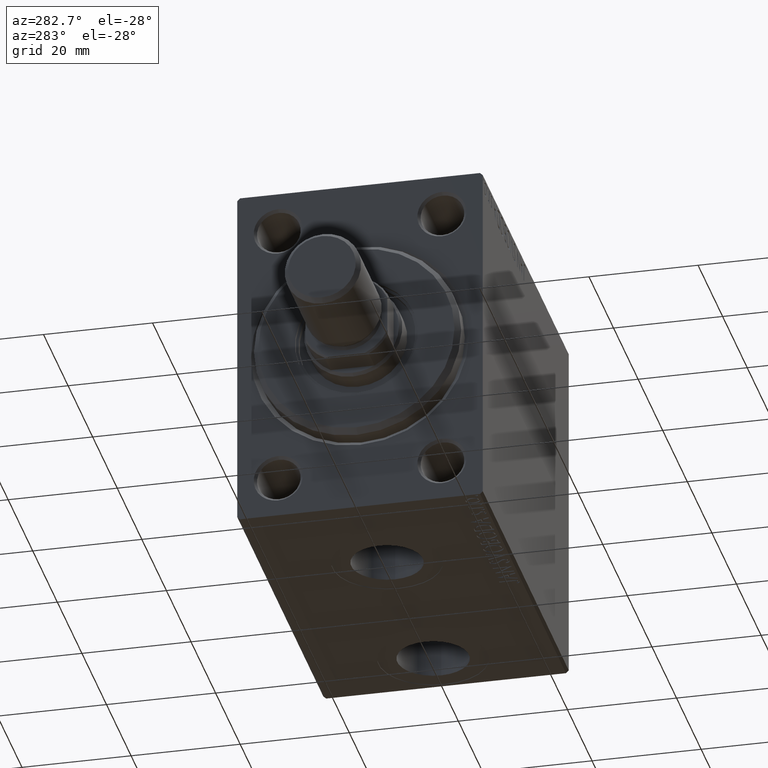
[diagram: clean part render]
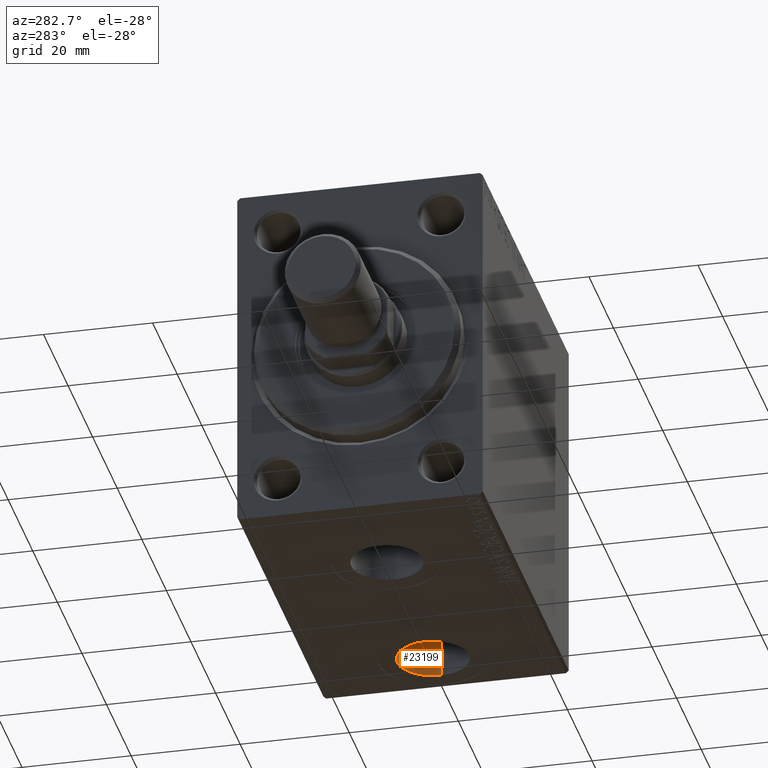
[diagram: same view with one face highlighted and labeled with its STEP entity id]
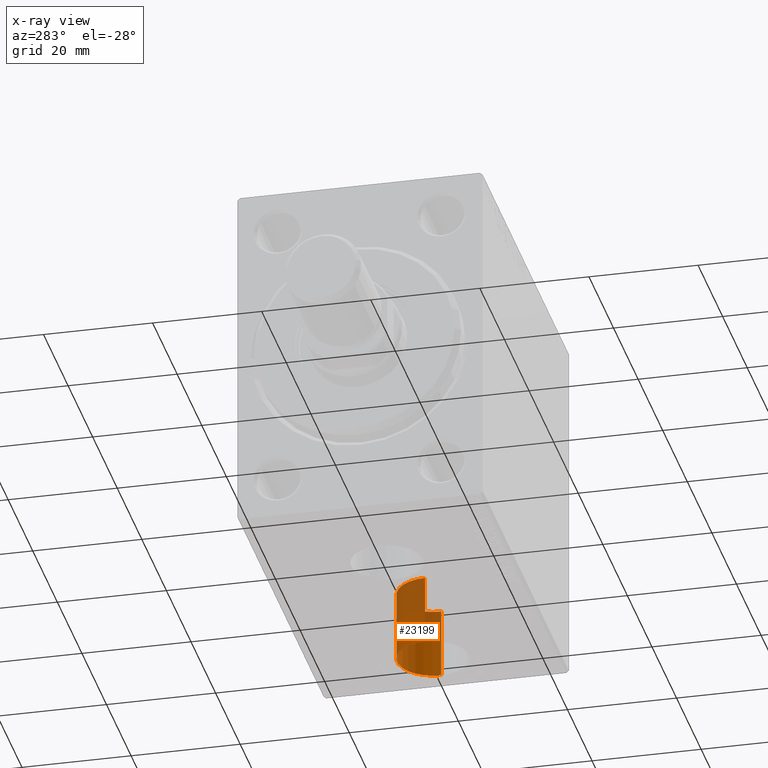
[diagram: x-ray of the same camera — body ghosted, the highlighted face saturated]
A machine part, auxiliary view. The second image highlights one B-rep face of the part: STEP entity #23199.
The next image is the same camera in x-ray: the body ghosted, the highlighted face saturated — about 40% of this face is hidden behind the body in this view.
In plain terms, the highlighted cylindrical surface (partial cylindrical patch) has radius 6.58 mm, axis along (-0, -0, -1).
Its self-contained STEP definition (entity closure, byte-faithful):
#237 = CYLINDRICAL_SURFACE ( 'NONE', #45029, 6.580000000000002736 ) ;
#2285 = VECTOR ( 'NONE', #20645, 1000.000000000000000 ) ;
#2688 = ORIENTED_EDGE ( 'NONE', *, *, #44700, .F. ) ;
#3340 = LINE ( 'NONE', #35212, #31662 ) ;
#6346 = ORIENTED_EDGE ( 'NONE', *, *, #23997, .T. ) ;
#7587 = DIRECTION ( 'NONE',  ( 0.000000000000000000, 0.000000000000000000, -1.000000000000000000 ) ) ;
#9614 = VERTEX_POINT ( 'NONE', #31049 ) ;
#9959 = DIRECTION ( 'NONE',  ( 0.000000000000000000, 0.000000000000000000, -1.000000000000000000 ) ) ;
#10400 = LINE ( 'NONE', #20869, #2285 ) ;
#10526 = EDGE_CURVE ( 'NONE', #9614, #26932, #24234, .T. ) ;
#14478 = CIRCLE ( 'NONE', #18150, 6.580000000000002736 ) ;
#14917 = CARTESIAN_POINT ( 'NONE',  ( 66.07999999999999829, -5.850147353426743435E-15, -19.50000000000000355 ) ) ;
#15347 = EDGE_LOOP ( 'NONE', ( #2688, #27203, #6346, #37095 ) ) ;
#18150 = AXIS2_PLACEMENT_3D ( 'NONE', #39452, #7587, #25046 ) ;
#19116 = EDGE_CURVE ( 'NONE', #43642, #39550, #14478, .T. ) ;
#20645 = DIRECTION ( 'NONE',  ( -0.000000000000000000, -0.000000000000000000, -1.000000000000000000 ) ) ;
#20869 = CARTESIAN_POINT ( 'NONE',  ( 66.07999999999999829, -5.850147353426744223E-15, -19.50000000000000355 ) ) ;
#20977 = FACE_OUTER_BOUND ( 'NONE', #15347, .T. ) ;
#23199 = ADVANCED_FACE ( 'NONE', ( #20977 ), #237, .F. ) ;
#23997 = EDGE_CURVE ( 'NONE', #9614, #43642, #3340, .T. ) ;
#24234 = CIRCLE ( 'NONE', #36104, 6.580000000000002736 ) ;
#24692 = DIRECTION ( 'NONE',  ( -0.000000000000000000, -0.000000000000000000, -1.000000000000000000 ) ) ;
#25046 = DIRECTION ( 'NONE',  ( -1.000000000000000000, 0.000000000000000000, 0.000000000000000000 ) ) ;
#26932 = VERTEX_POINT ( 'NONE', #14917 ) ;
#27203 = ORIENTED_EDGE ( 'NONE', *, *, #10526, .F. ) ;
#28087 = DIRECTION ( 'NONE',  ( -1.000000000000000000, 0.000000000000000000, 0.000000000000000000 ) ) ;
#31049 = CARTESIAN_POINT ( 'NONE',  ( 52.92000000000000171, -6.655964947265702476E-15, -19.50000000000000355 ) ) ;
#31502 = CARTESIAN_POINT ( 'NONE',  ( 66.07999999999999829, -5.850147353426743435E-15, -32.40000000000000568 ) ) ;
#31583 = CARTESIAN_POINT ( 'NONE',  ( 52.92000000000000171, -6.655964947265702476E-15, -32.40000000000000568 ) ) ;
#31662 = VECTOR ( 'NONE', #41746, 1000.000000000000000 ) ;
#35212 = CARTESIAN_POINT ( 'NONE',  ( 52.92000000000000171, -6.655964947265702476E-15, -19.50000000000000355 ) ) ;
#36104 = AXIS2_PLACEMENT_3D ( 'NONE', #45994, #9959, #28087 ) ;
#37095 = ORIENTED_EDGE ( 'NONE', *, *, #19116, .T. ) ;
#39101 = DIRECTION ( 'NONE',  ( -1.000000000000000000, 0.000000000000000000, 0.000000000000000000 ) ) ;
#39452 = CARTESIAN_POINT ( 'NONE',  ( 59.50000000000000711, -6.655964947265702476E-15, -32.40000000000000568 ) ) ;
#39550 = VERTEX_POINT ( 'NONE', #31502 ) ;
#41746 = DIRECTION ( 'NONE',  ( -0.000000000000000000, -0.000000000000000000, -1.000000000000000000 ) ) ;
#42362 = CARTESIAN_POINT ( 'NONE',  ( 59.50000000000000711, -6.655964947265702476E-15, -19.50000000000000355 ) ) ;
#43642 = VERTEX_POINT ( 'NONE', #31583 ) ;
#44700 = EDGE_CURVE ( 'NONE', #26932, #39550, #10400, .T. ) ;
#45029 = AXIS2_PLACEMENT_3D ( 'NONE', #42362, #24692, #39101 ) ;
#45994 = CARTESIAN_POINT ( 'NONE',  ( 59.50000000000000711, -6.655964947265702476E-15, -19.50000000000000355 ) ) ;